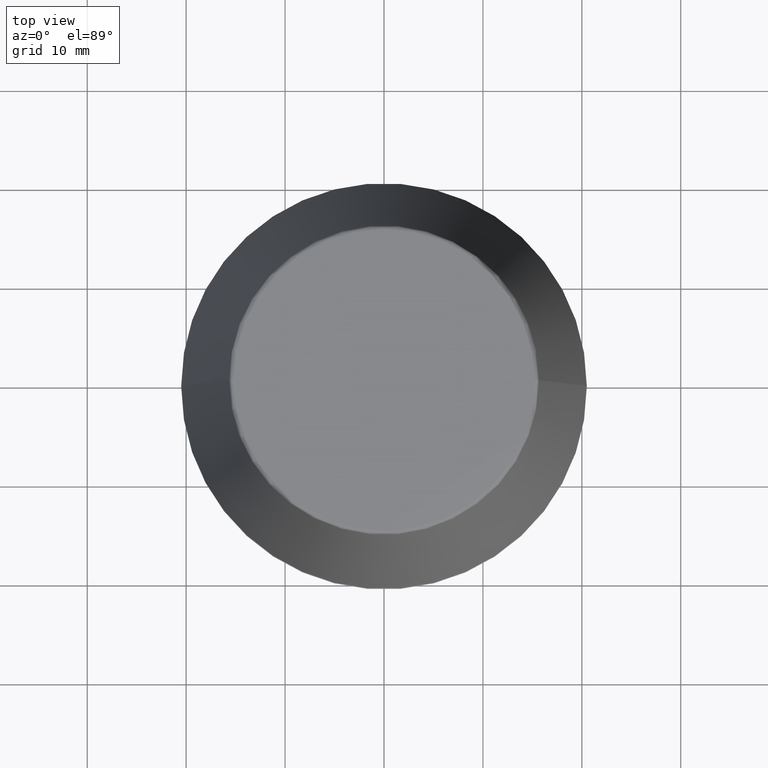
[diagram: clean part render]
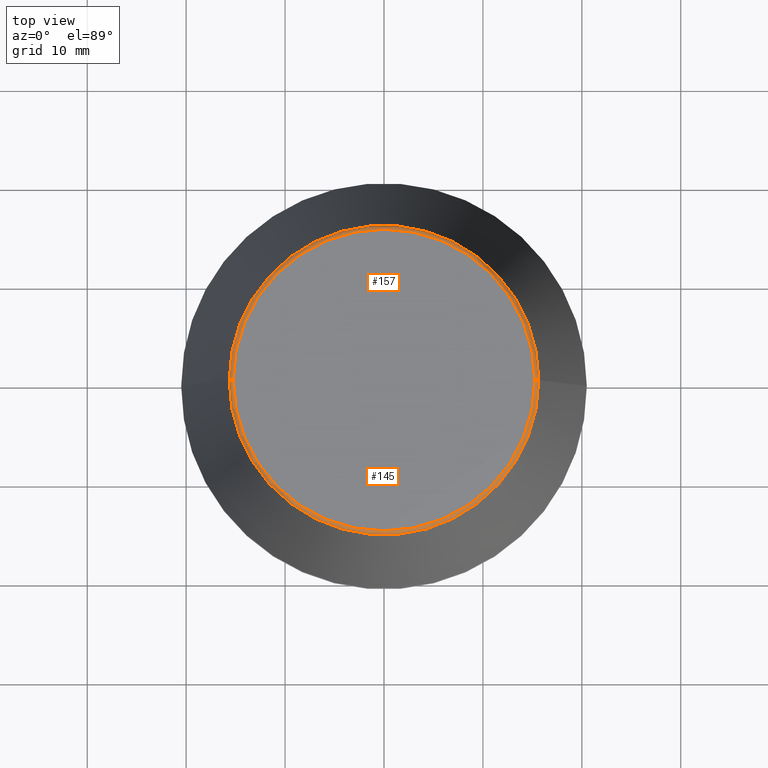
[diagram: same view with one multi-face feature highlighted, each face labeled with its STEP entity id]
A machine part, top view. The highlighted faces form ONE feature: a constant-radius fillet chain: 2 tangent blend faces with common blend radius 0.4 mm. The faces share edges in the B-rep.
Their STEP definitions:
[1] entity #145 (Torus):
#8 = CIRCLE ( 'NONE', #165, 0.3999999999999975800 ) ;
#10 = AXIS2_PLACEMENT_3D ( 'NONE', #73, #252, #41 ) ;
#19 = VERTEX_POINT ( 'NONE', #194 ) ;
#39 = EDGE_LOOP ( 'NONE', ( #240, #158, #335, #277 ) ) ;
#41 = DIRECTION ( 'NONE',  ( 0.0000000000000000000, 0.0000000000000000000, -1.000000000000000000 ) ) ;
#50 = CARTESIAN_POINT ( 'NONE',  ( -15.24773554530077600, 1.867309052979791600E-015, 45.60000000000000100 ) ) ;
#69 = EDGE_CURVE ( 'NONE', #184, #131, #215, .T. ) ;
#73 = CARTESIAN_POINT ( 'NONE',  ( 15.24773554530077600, 0.0000000000000000000, 45.60000000000000100 ) ) ;
#94 = VERTEX_POINT ( 'NONE', #351 ) ;
#121 = AXIS2_PLACEMENT_3D ( 'NONE', #154, #292, #162 ) ;
#131 = VERTEX_POINT ( 'NONE', #198 ) ;
#135 = CIRCLE ( 'NONE', #293, 15.64384277279740400 ) ;
#145 = ADVANCED_FACE ( 'NONE', ( #303 ), #297, .T. ) ;
#147 = DIRECTION ( 'NONE',  ( -1.000000000000000000, 1.224646799147353900E-016, 0.0000000000000000000 ) ) ;
#154 = CARTESIAN_POINT ( 'NONE',  ( 0.0000000000000000000, 0.0000000000000000000, 46.00000000000000000 ) ) ;
#156 = EDGE_CURVE ( 'NONE', #19, #131, #287, .T. ) ;
#158 = ORIENTED_EDGE ( 'NONE', *, *, #331, .T. ) ;
#162 = DIRECTION ( 'NONE',  ( 1.000000000000000000, 0.0000000000000000000, 0.0000000000000000000 ) ) ;
#165 = AXIS2_PLACEMENT_3D ( 'NONE', #50, #238, #147 ) ;
#167 = DIRECTION ( 'NONE',  ( 1.000000000000000000, 0.0000000000000000000, 0.0000000000000000000 ) ) ;
#170 = CARTESIAN_POINT ( 'NONE',  ( 0.0000000000000000000, 0.0000000000000000000, 45.65566924038402900 ) ) ;
#184 = VERTEX_POINT ( 'NONE', #225 ) ;
#194 = CARTESIAN_POINT ( 'NONE',  ( 15.64384277279740400, 2.213191991290356800E-015, 45.65566924038402900 ) ) ;
#198 = CARTESIAN_POINT ( 'NONE',  ( 15.24773554530077600, 0.0000000000000000000, 46.00000000000000000 ) ) ;
#203 = DIRECTION ( 'NONE',  ( 1.000000000000000000, 0.0000000000000000000, 0.0000000000000000000 ) ) ;
#215 = CIRCLE ( 'NONE', #121, 15.24773554530077600 ) ;
#225 = CARTESIAN_POINT ( 'NONE',  ( -15.24773554530077600, 1.891563625393435400E-015, 46.00000000000000000 ) ) ;
#238 = DIRECTION ( 'NONE',  ( 1.224646799147353200E-016, 1.000000000000000000, 0.0000000000000000000 ) ) ;
#240 = ORIENTED_EDGE ( 'NONE', *, *, #368, .F. ) ;
#252 = DIRECTION ( 'NONE',  ( 0.0000000000000000000, -1.000000000000000000, 0.0000000000000000000 ) ) ;
#277 = ORIENTED_EDGE ( 'NONE', *, *, #69, .F. ) ;
#287 = CIRCLE ( 'NONE', #10, 0.3999999999999975800 ) ;
#292 = DIRECTION ( 'NONE',  ( -0.0000000000000000000, -0.0000000000000000000, 1.000000000000000000 ) ) ;
#293 = AXIS2_PLACEMENT_3D ( 'NONE', #170, #379, #203 ) ;
#297 = TOROIDAL_SURFACE ( 'NONE', #384, 15.24773554530077600, 0.3999999999999991900 ) ;
#303 = FACE_OUTER_BOUND ( 'NONE', #39, .T. ) ;
#331 = EDGE_CURVE ( 'NONE', #94, #19, #135, .T. ) ;
#335 = ORIENTED_EDGE ( 'NONE', *, *, #156, .T. ) ;
#337 = CARTESIAN_POINT ( 'NONE',  ( 0.0000000000000000000, 0.0000000000000000000, 45.60000000000000100 ) ) ;
#351 = CARTESIAN_POINT ( 'NONE',  ( -15.64384277279740400, 0.0000000000000000000, 45.65566924038402900 ) ) ;
#368 = EDGE_CURVE ( 'NONE', #94, #184, #8, .T. ) ;
#376 = DIRECTION ( 'NONE',  ( -0.0000000000000000000, -0.0000000000000000000, 1.000000000000000000 ) ) ;
#379 = DIRECTION ( 'NONE',  ( -0.0000000000000000000, -0.0000000000000000000, 1.000000000000000000 ) ) ;
#384 = AXIS2_PLACEMENT_3D ( 'NONE', #337, #376, #167 ) ;
[2] entity #157 (Torus):
#5 = DIRECTION ( 'NONE',  ( 1.000000000000000000, 0.0000000000000000000, 0.0000000000000000000 ) ) ;
#8 = CIRCLE ( 'NONE', #165, 0.3999999999999975800 ) ;
#10 = AXIS2_PLACEMENT_3D ( 'NONE', #73, #252, #41 ) ;
#19 = VERTEX_POINT ( 'NONE', #194 ) ;
#35 = AXIS2_PLACEMENT_3D ( 'NONE', #38, #248, #70 ) ;
#37 = ORIENTED_EDGE ( 'NONE', *, *, #48, .T. ) ;
#38 = CARTESIAN_POINT ( 'NONE',  ( 0.0000000000000000000, 0.0000000000000000000, 45.65566924038402900 ) ) ;
#41 = DIRECTION ( 'NONE',  ( 0.0000000000000000000, 0.0000000000000000000, -1.000000000000000000 ) ) ;
#48 = EDGE_CURVE ( 'NONE', #19, #94, #236, .T. ) ;
#50 = CARTESIAN_POINT ( 'NONE',  ( -15.24773554530077600, 1.867309052979791600E-015, 45.60000000000000100 ) ) ;
#57 = AXIS2_PLACEMENT_3D ( 'NONE', #310, #128, #5 ) ;
#70 = DIRECTION ( 'NONE',  ( 1.000000000000000000, 0.0000000000000000000, 0.0000000000000000000 ) ) ;
#73 = CARTESIAN_POINT ( 'NONE',  ( 15.24773554530077600, 0.0000000000000000000, 45.60000000000000100 ) ) ;
#94 = VERTEX_POINT ( 'NONE', #351 ) ;
#96 = CIRCLE ( 'NONE', #313, 15.24773554530077600 ) ;
#104 = CARTESIAN_POINT ( 'NONE',  ( 0.0000000000000000000, 0.0000000000000000000, 46.00000000000000000 ) ) ;
#108 = ORIENTED_EDGE ( 'NONE', *, *, #156, .F. ) ;
#128 = DIRECTION ( 'NONE',  ( -0.0000000000000000000, -0.0000000000000000000, 1.000000000000000000 ) ) ;
#131 = VERTEX_POINT ( 'NONE', #198 ) ;
#133 = DIRECTION ( 'NONE',  ( 1.000000000000000000, 0.0000000000000000000, 0.0000000000000000000 ) ) ;
#144 = ORIENTED_EDGE ( 'NONE', *, *, #302, .F. ) ;
#147 = DIRECTION ( 'NONE',  ( -1.000000000000000000, 1.224646799147353900E-016, 0.0000000000000000000 ) ) ;
#156 = EDGE_CURVE ( 'NONE', #19, #131, #287, .T. ) ;
#157 = ADVANCED_FACE ( 'NONE', ( #286 ), #260, .T. ) ;
#165 = AXIS2_PLACEMENT_3D ( 'NONE', #50, #238, #147 ) ;
#184 = VERTEX_POINT ( 'NONE', #225 ) ;
#194 = CARTESIAN_POINT ( 'NONE',  ( 15.64384277279740400, 2.213191991290356800E-015, 45.65566924038402900 ) ) ;
#198 = CARTESIAN_POINT ( 'NONE',  ( 15.24773554530077600, 0.0000000000000000000, 46.00000000000000000 ) ) ;
#212 = ORIENTED_EDGE ( 'NONE', *, *, #368, .T. ) ;
#225 = CARTESIAN_POINT ( 'NONE',  ( -15.24773554530077600, 1.891563625393435400E-015, 46.00000000000000000 ) ) ;
#236 = CIRCLE ( 'NONE', #35, 15.64384277279740400 ) ;
#238 = DIRECTION ( 'NONE',  ( 1.224646799147353200E-016, 1.000000000000000000, 0.0000000000000000000 ) ) ;
#248 = DIRECTION ( 'NONE',  ( -0.0000000000000000000, -0.0000000000000000000, 1.000000000000000000 ) ) ;
#252 = DIRECTION ( 'NONE',  ( 0.0000000000000000000, -1.000000000000000000, 0.0000000000000000000 ) ) ;
#260 = TOROIDAL_SURFACE ( 'NONE', #57, 15.24773554530077600, 0.3999999999999991900 ) ;
#286 = FACE_OUTER_BOUND ( 'NONE', #377, .T. ) ;
#287 = CIRCLE ( 'NONE', #10, 0.3999999999999975800 ) ;
#302 = EDGE_CURVE ( 'NONE', #131, #184, #96, .T. ) ;
#310 = CARTESIAN_POINT ( 'NONE',  ( 0.0000000000000000000, 0.0000000000000000000, 45.60000000000000100 ) ) ;
#313 = AXIS2_PLACEMENT_3D ( 'NONE', #104, #326, #133 ) ;
#326 = DIRECTION ( 'NONE',  ( -0.0000000000000000000, -0.0000000000000000000, 1.000000000000000000 ) ) ;
#351 = CARTESIAN_POINT ( 'NONE',  ( -15.64384277279740400, 0.0000000000000000000, 45.65566924038402900 ) ) ;
#368 = EDGE_CURVE ( 'NONE', #94, #184, #8, .T. ) ;
#377 = EDGE_LOOP ( 'NONE', ( #37, #212, #144, #108 ) ) ;